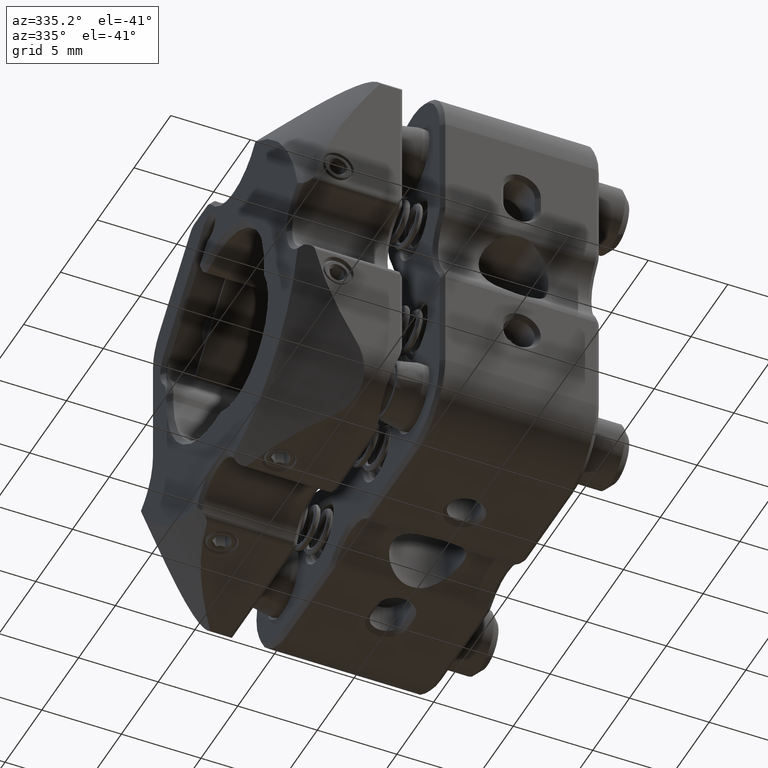
[diagram: clean part render]
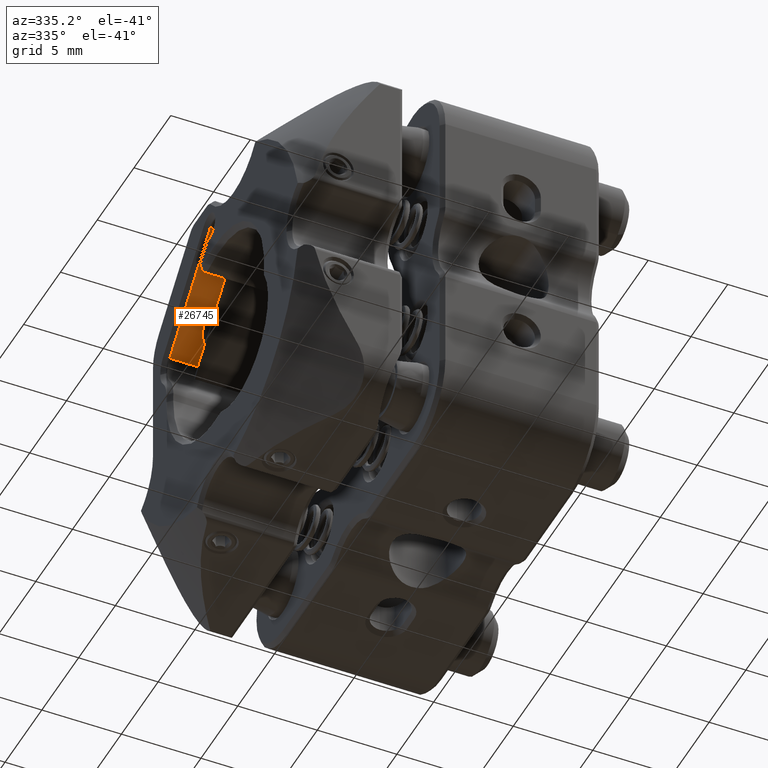
[diagram: same view with one face highlighted and labeled with its STEP entity id]
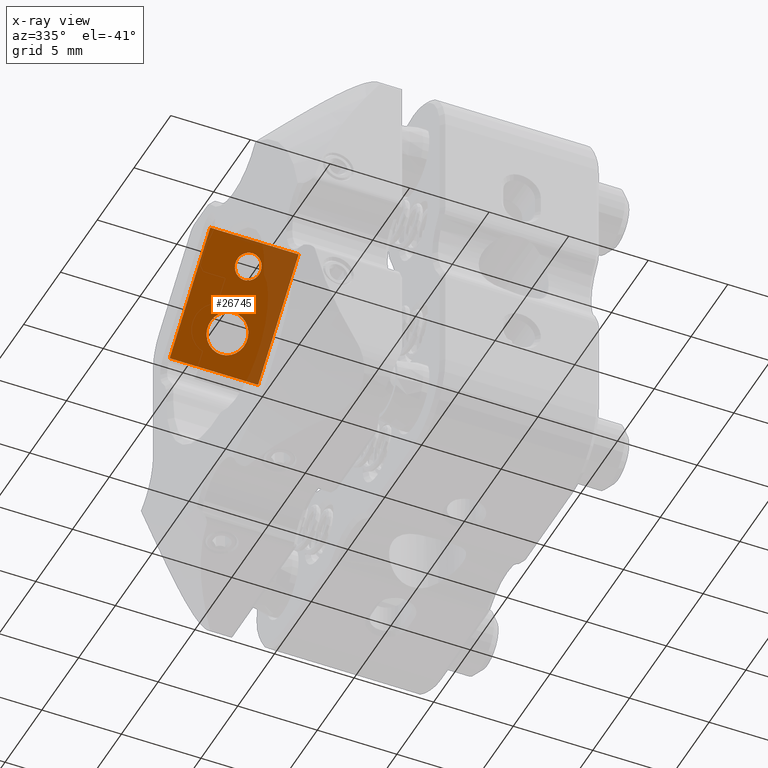
[diagram: x-ray of the same camera — body ghosted, the highlighted face saturated]
A machine part, auxiliary view. The second image highlights one B-rep face of the part: STEP entity #26745.
The next image is the same camera in x-ray: the body ghosted, the highlighted face saturated — about 23% of this face is hidden behind the body in this view.
In plain terms, the highlighted planar face has unit normal (0, 0.7071, 0.7071).
Its self-contained STEP definition (entity closure, byte-faithful):
#411 = EDGE_LOOP ( 'NONE', ( #4154, #66915 ) ) ;
#1434 = CARTESIAN_POINT ( 'NONE',  ( 3.038951424594836581, 7.672108575873619607, 2.722361107567930816 ) ) ;
#1597 = CARTESIAN_POINT ( 'NONE',  ( -10.17500000000000071, 5.197234841720705489, 5.197234841720829834 ) ) ;
#3156 = CARTESIAN_POINT ( 'NONE',  ( -7.500000000000000000, 1.308147545194676686, 9.086322138246844204 ) ) ;
#4154 = ORIENTED_EDGE ( 'NONE', *, *, #14363, .F. ) ;
#5446 = VERTEX_POINT ( 'NONE', #47293 ) ;
#7375 = AXIS2_PLACEMENT_3D ( 'NONE', #84695, #84363, #40931 ) ;
#8929 = DIRECTION ( 'NONE',  ( 0.000000000000000000, -0.7071067811865460184, -0.7071067811865490160 ) ) ;
#9705 = VERTEX_POINT ( 'NONE', #66790 ) ;
#10740 = LINE ( 'NONE', #57535, #86214 ) ;
#12494 = CARTESIAN_POINT ( 'NONE',  ( -10.17500000000000071, 2.934493141923751214, 7.459976541517776560 ) ) ;
#13919 = CIRCLE ( 'NONE', #27664, 1.249999999999999334 ) ;
#14363 = EDGE_CURVE ( 'NONE', #9705, #5446, #13919, .T. ) ;
#14893 = DIRECTION ( 'NONE',  ( 0.000000000000000000, -0.7071067811865489050, 0.7071067811865460184 ) ) ;
#15381 = LINE ( 'NONE', #30661, #89749 ) ;
#16873 = VERTEX_POINT ( 'NONE', #12494 ) ;
#18153 = EDGE_CURVE ( 'NONE', #18818, #37454, #15381, .T. ) ;
#18166 = FACE_BOUND ( 'NONE', #411, .T. ) ;
#18818 = VERTEX_POINT ( 'NONE', #3156 ) ;
#23293 = DIRECTION ( 'NONE',  ( 0.000000000000000000, -0.7071067811865489050, 0.7071067811865460184 ) ) ;
#26745 = ADVANCED_FACE ( 'NONE', ( #43283, #18166, #69629 ), #59542, .F. ) ;
#27217 = DIRECTION ( 'NONE',  ( -1.000000000000000000, 0.000000000000000000, 0.000000000000000000 ) ) ;
#27664 = AXIS2_PLACEMENT_3D ( 'NONE', #41730, #93123, #77838 ) ;
#28311 = EDGE_LOOP ( 'NONE', ( #78594, #93535, #29454, #44875 ) ) ;
#28989 = CARTESIAN_POINT ( 'NONE',  ( -13.05000000000000249, 1.308147545194676686, 9.086322138246844204 ) ) ;
#29454 = ORIENTED_EDGE ( 'NONE', *, *, #93156, .T. ) ;
#29694 = ORIENTED_EDGE ( 'NONE', *, *, #35924, .T. ) ;
#30661 = CARTESIAN_POINT ( 'NONE',  ( -7.500000000000000000, 7.672108575873619607, 2.722361107567930816 ) ) ;
#33597 = AXIS2_PLACEMENT_3D ( 'NONE', #40071, #61128, #38820 ) ;
#35924 = EDGE_CURVE ( 'NONE', #56682, #16873, #89411, .T. ) ;
#37454 = VERTEX_POINT ( 'NONE', #94728 ) ;
#37694 = DIRECTION ( 'NONE',  ( -0.000000000000000000, 0.7071067811865489050, -0.7071067811865460184 ) ) ;
#38059 = VERTEX_POINT ( 'NONE', #38886 ) ;
#38820 = DIRECTION ( 'NONE',  ( 0.000000000000000000, -0.7071067811865486830, 0.7071067811865464625 ) ) ;
#38886 = CARTESIAN_POINT ( 'NONE',  ( -13.05000000000000249, 6.823580438449761587, 3.570889244991785283 ) ) ;
#39046 = EDGE_CURVE ( 'NONE', #38059, #87971, #65040, .T. ) ;
#40071 = CARTESIAN_POINT ( 'NONE',  ( -10.17500000000000071, 2.368807716974511646, 8.025661966467014352 ) ) ;
#40931 = DIRECTION ( 'NONE',  ( 0.000000000000000000, -0.7071067811865486830, 0.7071067811865464625 ) ) ;
#41730 = CARTESIAN_POINT ( 'NONE',  ( -10.17500000000000071, 5.197234841720705489, 5.197234841720829834 ) ) ;
#42004 = EDGE_CURVE ( 'NONE', #16873, #56682, #89918, .T. ) ;
#43283 = FACE_BOUND ( 'NONE', #79497, .T. ) ;
#44875 = ORIENTED_EDGE ( 'NONE', *, *, #39046, .F. ) ;
#45671 = VECTOR ( 'NONE', #14893, 1000.000000000000114 ) ;
#47293 = CARTESIAN_POINT ( 'NONE',  ( -10.17500000000000071, 6.081118318203891704, 4.313351365237646284 ) ) ;
#47304 = CARTESIAN_POINT ( 'NONE',  ( -10.17500000000000071, 1.803122292025272744, 8.591347391416249479 ) ) ;
#48777 = ORIENTED_EDGE ( 'NONE', *, *, #42004, .T. ) ;
#53864 = LINE ( 'NONE', #82955, #71046 ) ;
#56682 = VERTEX_POINT ( 'NONE', #47304 ) ;
#57535 = CARTESIAN_POINT ( 'NONE',  ( -13.35000000000000142, 6.823580438449761587, 3.570889244991785283 ) ) ;
#59542 = PLANE ( 'NONE',  #70273 ) ;
#60483 = DIRECTION ( 'NONE',  ( 0.000000000000000000, 0.7071067811865461294, 0.7071067811865490160 ) ) ;
#60885 = DIRECTION ( 'NONE',  ( -1.000000000000000000, 0.000000000000000000, 0.000000000000000000 ) ) ;
#61128 = DIRECTION ( 'NONE',  ( -0.000000000000000000, 0.7071067811865460184, 0.7071067811865490160 ) ) ;
#61263 = AXIS2_PLACEMENT_3D ( 'NONE', #1597, #8929, #23293 ) ;
#64252 = EDGE_CURVE ( 'NONE', #37454, #38059, #10740, .T. ) ;
#65040 = LINE ( 'NONE', #28989, #45671 ) ;
#66022 = EDGE_CURVE ( 'NONE', #5446, #9705, #71107, .T. ) ;
#66790 = CARTESIAN_POINT ( 'NONE',  ( -10.17500000000000071, 4.313351365237521051, 6.081118318204010720 ) ) ;
#66908 = DIRECTION ( 'NONE',  ( 0.000000000000000000, -0.7071067811865489050, 0.7071067811865460184 ) ) ;
#66915 = ORIENTED_EDGE ( 'NONE', *, *, #66022, .F. ) ;
#69629 = FACE_OUTER_BOUND ( 'NONE', #28311, .T. ) ;
#70273 = AXIS2_PLACEMENT_3D ( 'NONE', #1434, #60483, #66908 ) ;
#71046 = VECTOR ( 'NONE', #60885, 1000.000000000000000 ) ;
#71107 = CIRCLE ( 'NONE', #61263, 1.249999999999999334 ) ;
#77838 = DIRECTION ( 'NONE',  ( 0.000000000000000000, -0.7071067811865489050, 0.7071067811865460184 ) ) ;
#78594 = ORIENTED_EDGE ( 'NONE', *, *, #64252, .F. ) ;
#79497 = EDGE_LOOP ( 'NONE', ( #29694, #48777 ) ) ;
#82955 = CARTESIAN_POINT ( 'NONE',  ( 3.038951424594836581, 1.308147545194676686, 9.086322138246842428 ) ) ;
#84363 = DIRECTION ( 'NONE',  ( -0.000000000000000000, 0.7071067811865460184, 0.7071067811865490160 ) ) ;
#84695 = CARTESIAN_POINT ( 'NONE',  ( -10.17500000000000071, 2.368807716974511646, 8.025661966467014352 ) ) ;
#86214 = VECTOR ( 'NONE', #27217, 1000.000000000000000 ) ;
#87971 = VERTEX_POINT ( 'NONE', #92398 ) ;
#89411 = CIRCLE ( 'NONE', #7375, 0.7999999999999998224 ) ;
#89749 = VECTOR ( 'NONE', #37694, 1000.000000000000114 ) ;
#89918 = CIRCLE ( 'NONE', #33597, 0.7999999999999998224 ) ;
#92398 = CARTESIAN_POINT ( 'NONE',  ( -13.05000000000000249, 1.308147545194676686, 9.086322138246842428 ) ) ;
#93123 = DIRECTION ( 'NONE',  ( 0.000000000000000000, -0.7071067811865460184, -0.7071067811865490160 ) ) ;
#93156 = EDGE_CURVE ( 'NONE', #18818, #87971, #53864, .T. ) ;
#93535 = ORIENTED_EDGE ( 'NONE', *, *, #18153, .F. ) ;
#94728 = CARTESIAN_POINT ( 'NONE',  ( -7.500000000000000000, 6.823580438449761587, 3.570889244991785283 ) ) ;